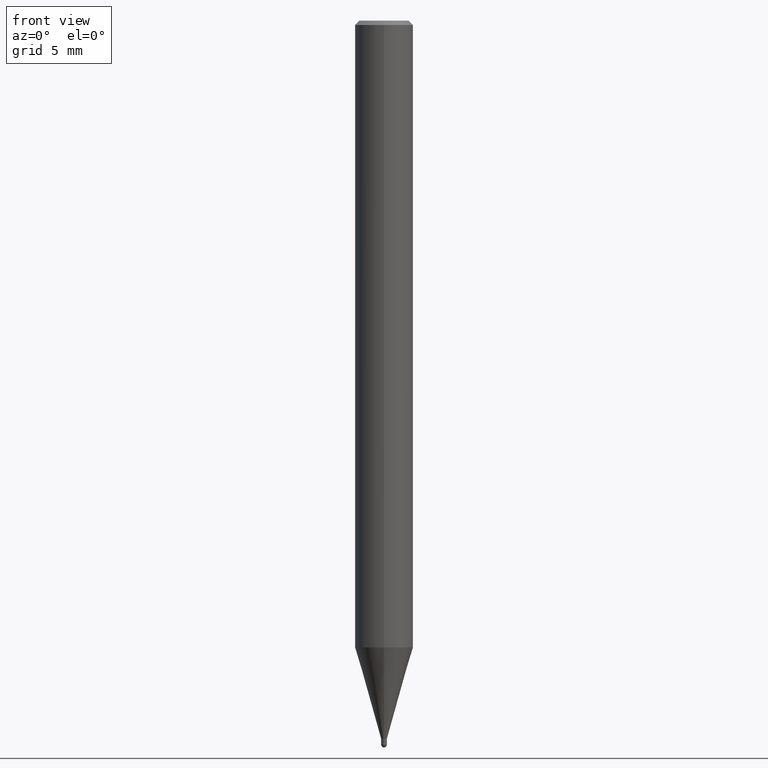
[diagram: clean part render]
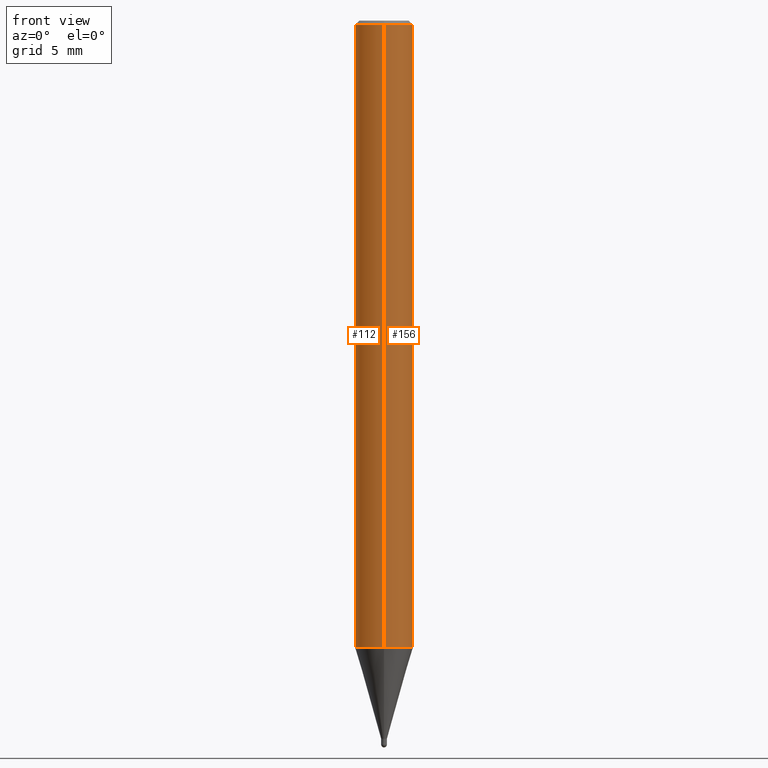
[diagram: same view with one multi-face feature highlighted, each face labeled with its STEP entity id]
A machine part, front view. The highlighted faces form ONE feature: a constant-radius fillet chain: 2 tangent blend faces with common blend radius 2 mm. The faces share edges in the B-rep.
Their STEP definitions:
[1] entity #112 (Cylinder):
#90=EDGE_CURVE('',#164,#134,#215,.T.);
#98=VERTEX_POINT('',#223);
#100=EDGE_CURVE('',#98,#122,#225,.T.);
#112=ADVANCED_FACE('',(#238),#239,.T.);
#120=EDGE_CURVE('',#98,#134,#248,.T.);
#122=VERTEX_POINT('',#250);
#130=EDGE_CURVE('',#122,#164,#259,.T.);
#134=VERTEX_POINT('',#263);
#164=VERTEX_POINT('',#301);
#215=LINE('',#350,#351);
#223=CARTESIAN_POINT('',(2.44921270764475E-016,-2.0,-43.123));
#225=LINE('',#365,#366);
#238=FACE_OUTER_BOUND('',#385,.T.);
#239=CYLINDRICAL_SURFACE('',#386,2.0);
#248=CIRCLE('',#396,2.0);
#250=CARTESIAN_POINT('',(2.44921270764475E-016,-2.0,-0.299999999999997));
#259=CIRCLE('',#412,2.0);
#263=CARTESIAN_POINT('',(0.0,2.0,-43.123));
#301=CARTESIAN_POINT('',(0.0,2.0,-0.299999999999997));
#350=CARTESIAN_POINT('',(-2.44921270764475E-016,2.0,-21.7115));
#351=VECTOR('',#494,1.0);
#365=CARTESIAN_POINT('',(2.44921270764475E-016,-2.0,-21.7115));
#366=VECTOR('',#504,1.0);
#385=EDGE_LOOP('',(#522,#523,#524,#525));
#386=AXIS2_PLACEMENT_3D('',#526,#527,#528);
#396=AXIS2_PLACEMENT_3D('',#535,#536,#537);
#412=AXIS2_PLACEMENT_3D('',#546,#547,#548);
#494=DIRECTION('',(0.0,0.0,-1.0));
#504=DIRECTION('',(-0.0,-0.0,1.0));
#522=ORIENTED_EDGE('',*,*,#90,.T.);
#523=ORIENTED_EDGE('',*,*,#120,.F.);
#524=ORIENTED_EDGE('',*,*,#100,.T.);
#525=ORIENTED_EDGE('',*,*,#130,.T.);
#526=CARTESIAN_POINT('',(0.0,0.0,-21.7115));
#527=DIRECTION('',(-0.0,-0.0,1.0));
#528=DIRECTION('',(0.0,1.0,0.0));
#535=CARTESIAN_POINT('',(0.0,0.0,-43.123));
#536=DIRECTION('',(0.0,0.0,-1.0));
#537=DIRECTION('',(0.0,1.0,0.0));
#546=CARTESIAN_POINT('',(0.0,0.0,-0.299999999999997));
#547=DIRECTION('',(0.0,0.0,-1.0));
#548=DIRECTION('',(0.0,1.0,0.0));
[2] entity #156 (Cylinder):
#90=EDGE_CURVE('',#164,#134,#215,.T.);
#92=EDGE_CURVE('',#164,#122,#217,.T.);
#98=VERTEX_POINT('',#223);
#100=EDGE_CURVE('',#98,#122,#225,.T.);
#122=VERTEX_POINT('',#250);
#134=VERTEX_POINT('',#263);
#156=ADVANCED_FACE('',(#291),#292,.T.);
#164=VERTEX_POINT('',#301);
#182=EDGE_CURVE('',#134,#98,#322,.T.);
#215=LINE('',#350,#351);
#217=CIRCLE('',#354,2.0);
#223=CARTESIAN_POINT('',(2.44921270764475E-016,-2.0,-43.123));
#225=LINE('',#365,#366);
#250=CARTESIAN_POINT('',(2.44921270764475E-016,-2.0,-0.299999999999997));
#263=CARTESIAN_POINT('',(0.0,2.0,-43.123));
#291=FACE_OUTER_BOUND('',#446,.T.);
#292=CYLINDRICAL_SURFACE('',#447,2.0);
#301=CARTESIAN_POINT('',(0.0,2.0,-0.299999999999997));
#322=CIRCLE('',#481,2.0);
#350=CARTESIAN_POINT('',(-2.44921270764475E-016,2.0,-21.7115));
#351=VECTOR('',#494,1.0);
#354=AXIS2_PLACEMENT_3D('',#495,#496,#497);
#365=CARTESIAN_POINT('',(2.44921270764475E-016,-2.0,-21.7115));
#366=VECTOR('',#504,1.0);
#446=EDGE_LOOP('',(#596,#597,#598,#599));
#447=AXIS2_PLACEMENT_3D('',#600,#601,#602);
#481=AXIS2_PLACEMENT_3D('',#637,#638,#639);
#494=DIRECTION('',(0.0,0.0,-1.0));
#495=CARTESIAN_POINT('',(0.0,0.0,-0.299999999999997));
#496=DIRECTION('',(0.0,0.0,-1.0));
#497=DIRECTION('',(0.0,1.0,0.0));
#504=DIRECTION('',(-0.0,-0.0,1.0));
#596=ORIENTED_EDGE('',*,*,#90,.F.);
#597=ORIENTED_EDGE('',*,*,#92,.T.);
#598=ORIENTED_EDGE('',*,*,#100,.F.);
#599=ORIENTED_EDGE('',*,*,#182,.F.);
#600=CARTESIAN_POINT('',(0.0,0.0,-21.7115));
#601=DIRECTION('',(-0.0,-0.0,1.0));
#602=DIRECTION('',(0.0,1.0,0.0));
#637=CARTESIAN_POINT('',(0.0,0.0,-43.123));
#638=DIRECTION('',(0.0,0.0,-1.0));
#639=DIRECTION('',(0.0,1.0,0.0));